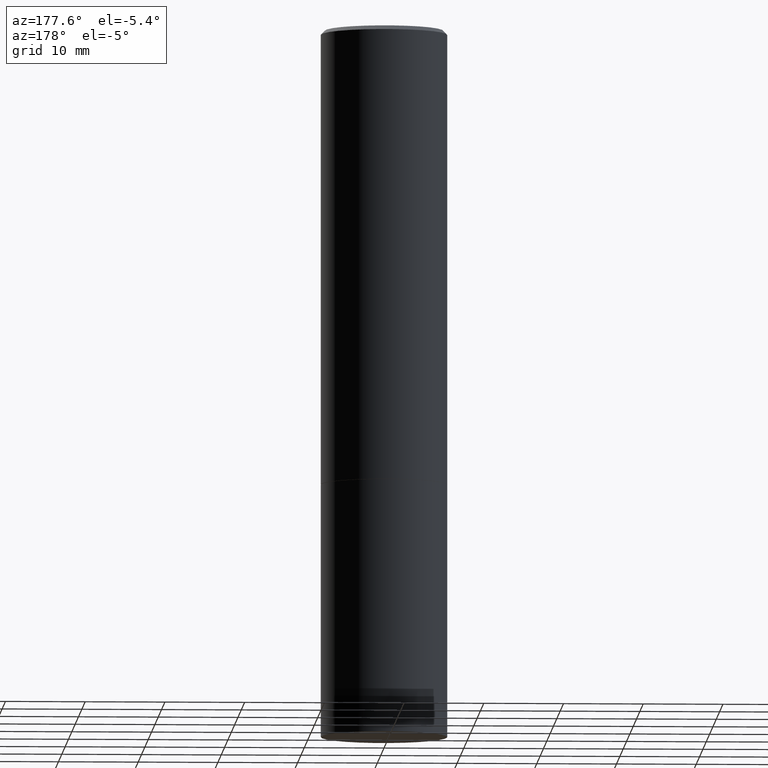
[diagram: clean part render]
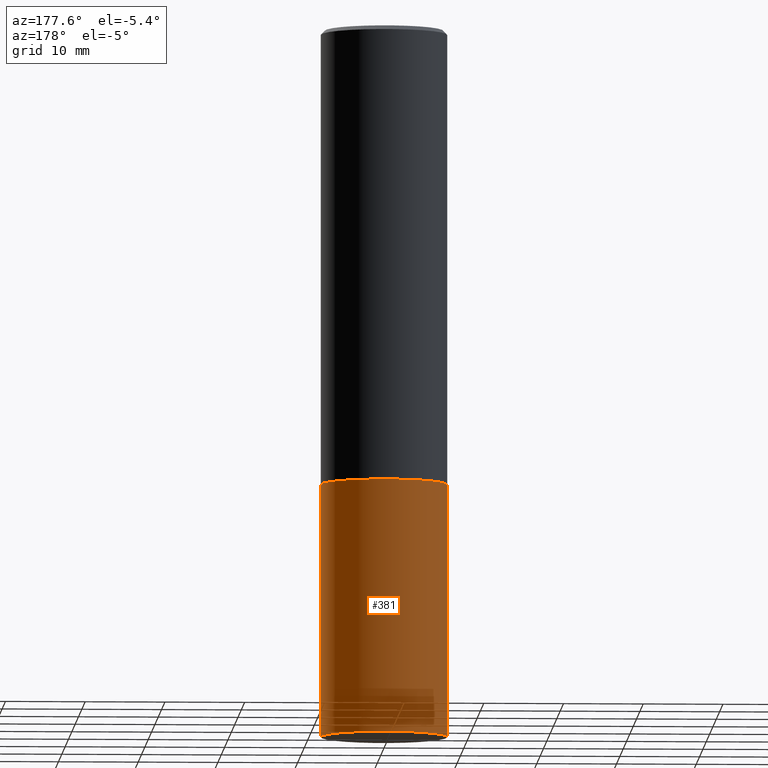
[diagram: same view with one face highlighted and labeled with its STEP entity id]
A machine part, auxiliary view. The second image highlights one B-rep face of the part: STEP entity #381.
In plain terms, the highlighted cylindrical surface (partial cylindrical patch) has radius 7.9375 mm, axis along (-0, 0, 1).
Its self-contained STEP definition (entity closure, byte-faithful):
#6 = CARTESIAN_POINT ( 'NONE',  ( 0.3124999999999997224, -1.436409031025461138E-14, -3.500000000000000000 ) ) ;
#8 = EDGE_CURVE ( 'NONE', #82, #297, #304, .T. ) ;
#19 = DIRECTION ( 'NONE',  ( 1.000000000000000000, -6.982962677686266711E-15, 4.876176775795936353E-29 ) ) ;
#34 = AXIS2_PLACEMENT_3D ( 'NONE', #372, #234, #68 ) ;
#40 = CARTESIAN_POINT ( 'NONE',  ( 8.559140821647976968E-29, -1.222018468595100934E-14, -3.500000000000000000 ) ) ;
#48 = CARTESIAN_POINT ( 'NONE',  ( 0.3125000000000000000, -2.182175836776958347E-15, 1.523805242436230075E-29 ) ) ;
#51 = VECTOR ( 'NONE', #371, 39.37007874015748143 ) ;
#60 = LINE ( 'NONE', #367, #51 ) ;
#68 = DIRECTION ( 'NONE',  ( 1.000000000000000000, -6.982962677686269077E-15, 0.000000000000000000 ) ) ;
#70 = DIRECTION ( 'NONE',  ( -2.445468806185136597E-29, 3.491481338843145583E-15, 1.000000000000000000 ) ) ;
#76 = DIRECTION ( 'NONE',  ( -2.445468806185136597E-29, 3.491481338843145583E-15, 1.000000000000000000 ) ) ;
#82 = VERTEX_POINT ( 'NONE', #6 ) ;
#84 = EDGE_LOOP ( 'NONE', ( #197, #90, #190, #261 ) ) ;
#89 = CARTESIAN_POINT ( 'NONE',  ( -0.3125000000000000000, -7.817562799923730025E-15, -2.249999999999999556 ) ) ;
#90 = ORIENTED_EDGE ( 'NONE', *, *, #215, .T. ) ;
#110 = VERTEX_POINT ( 'NONE', #89 ) ;
#123 = AXIS2_PLACEMENT_3D ( 'NONE', #282, #76, #19 ) ;
#138 = EDGE_CURVE ( 'NONE', #204, #110, #329, .T. ) ;
#187 = DIRECTION ( 'NONE',  ( 1.000000000000000000, -6.982962677686269077E-15, 0.000000000000000000 ) ) ;
#190 = ORIENTED_EDGE ( 'NONE', *, *, #138, .F. ) ;
#197 = ORIENTED_EDGE ( 'NONE', *, *, #8, .T. ) ;
#204 = VERTEX_POINT ( 'NONE', #280 ) ;
#215 = EDGE_CURVE ( 'NONE', #297, #110, #60, .T. ) ;
#217 = VECTOR ( 'NONE', #378, 39.37007874015748143 ) ;
#234 = DIRECTION ( 'NONE',  ( -2.445468806185136597E-29, 3.491481338843145583E-15, 1.000000000000000000 ) ) ;
#246 = CARTESIAN_POINT ( 'NONE',  ( -0.3124999999999997224, -1.003800884917405415E-14, -3.500000000000000000 ) ) ;
#261 = ORIENTED_EDGE ( 'NONE', *, *, #299, .F. ) ;
#280 = CARTESIAN_POINT ( 'NONE',  ( 0.3125000000000000000, -1.003800884917403522E-14, -2.249999999999999556 ) ) ;
#282 = CARTESIAN_POINT ( 'NONE',  ( 0.000000000000000000, 0.000000000000000000, 0.000000000000000000 ) ) ;
#285 = CYLINDRICAL_SURFACE ( 'NONE', #123, 0.3125000000000000000 ) ;
#293 = AXIS2_PLACEMENT_3D ( 'NONE', #40, #70, #187 ) ;
#297 = VERTEX_POINT ( 'NONE', #246 ) ;
#299 = EDGE_CURVE ( 'NONE', #82, #204, #354, .T. ) ;
#304 = CIRCLE ( 'NONE', #293, 0.3125000000000000000 ) ;
#314 = FACE_OUTER_BOUND ( 'NONE', #84, .T. ) ;
#329 = CIRCLE ( 'NONE', #34, 0.3125000000000000000 ) ;
#354 = LINE ( 'NONE', #48, #217 ) ;
#367 = CARTESIAN_POINT ( 'NONE',  ( -0.3125000000000000000, 2.220446049250313081E-15, -1.537167215704658232E-29 ) ) ;
#371 = DIRECTION ( 'NONE',  ( -2.445468806185136877E-29, 3.491481338843145188E-15, 1.000000000000000000 ) ) ;
#372 = CARTESIAN_POINT ( 'NONE',  ( 5.502304813916556222E-29, -7.855833012397076871E-15, -2.249999999999999556 ) ) ;
#378 = DIRECTION ( 'NONE',  ( -2.445468806185136877E-29, 3.491481338843145188E-15, 1.000000000000000000 ) ) ;
#381 = ADVANCED_FACE ( 'NONE', ( #314 ), #285, .T. ) ;